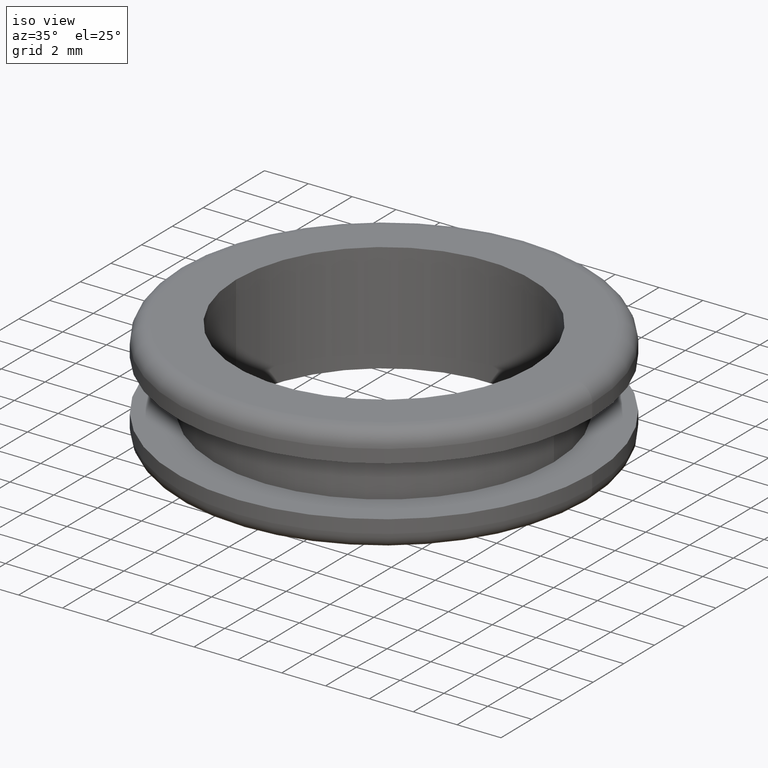
[diagram: clean part render]
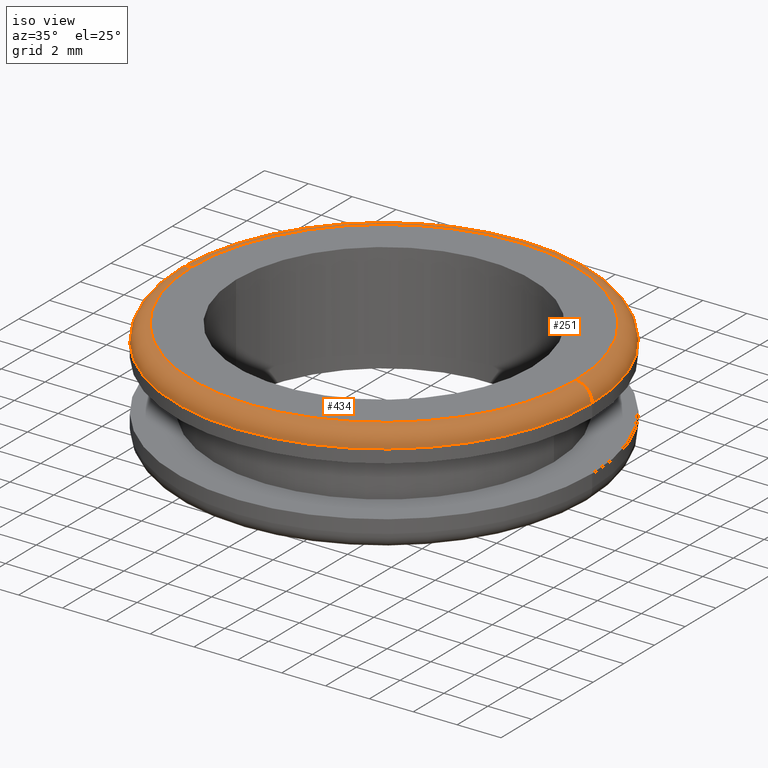
[diagram: same view with one multi-face feature highlighted, each face labeled with its STEP entity id]
A machine part, iso view. The highlighted faces form ONE feature: a constant-radius fillet chain: 2 tangent blend faces with common blend radius 0.75 mm. The faces share edges in the B-rep.
Their STEP definitions:
[1] entity #251 (Torus):
#4 = EDGE_CURVE ( 'NONE', #463, #54, #253, .T. ) ;
#52 = EDGE_CURVE ( 'NONE', #54, #210, #380, .T. ) ;
#54 = VERTEX_POINT ( 'NONE', #224 ) ;
#56 = EDGE_LOOP ( 'NONE', ( #171, #134, #62, #164 ) ) ;
#62 = ORIENTED_EDGE ( 'NONE', *, *, #379, .F. ) ;
#64 = CARTESIAN_POINT ( 'NONE',  ( 106.0608550663163900, 0.0000000000000000000, 141.9502122310738100 ) ) ;
#73 = DIRECTION ( 'NONE',  ( -0.0000000000000000000, -1.000000000000000000, -0.0000000000000000000 ) ) ;
#78 = EDGE_CURVE ( 'NONE', #463, #430, #255, .T. ) ;
#85 = DIRECTION ( 'NONE',  ( 0.0000000000000000000, 0.0000000000000000000, -1.000000000000000000 ) ) ;
#109 = CARTESIAN_POINT ( 'NONE',  ( 115.5608550661924900, 1.163414459174811700E-015, 141.9502122310738100 ) ) ;
#134 = ORIENTED_EDGE ( 'NONE', *, *, #52, .T. ) ;
#144 = CIRCLE ( 'NONE', #284, 9.499999999876093800 ) ;
#152 = AXIS2_PLACEMENT_3D ( 'NONE', #64, #365, #293 ) ;
#154 = AXIS2_PLACEMENT_3D ( 'NONE', #475, #193, #441 ) ;
#164 = ORIENTED_EDGE ( 'NONE', *, *, #78, .F. ) ;
#171 = ORIENTED_EDGE ( 'NONE', *, *, #4, .T. ) ;
#191 = CARTESIAN_POINT ( 'NONE',  ( 114.8108550661924900, 1.071565949238759400E-015, 141.9502122310738100 ) ) ;
#193 = DIRECTION ( 'NONE',  ( 0.0000000000000000000, 0.0000000000000000000, -1.000000000000000000 ) ) ;
#210 = VERTEX_POINT ( 'NONE', #109 ) ;
#224 = CARTESIAN_POINT ( 'NONE',  ( 114.8108550661924900, 1.117490204206784700E-015, 142.7002122310740000 ) ) ;
#243 = CARTESIAN_POINT ( 'NONE',  ( 97.31085506644029700, 0.0000000000000000000, 142.7002122310740000 ) ) ;
#251 = ADVANCED_FACE ( 'NONE', ( #278 ), #390, .T. ) ;
#253 = CIRCLE ( 'NONE', #154, 8.749999999876093800 ) ;
#255 = CIRCLE ( 'NONE', #355, 0.7500000000000006700 ) ;
#263 = DIRECTION ( 'NONE',  ( -1.224646799147353200E-016, 1.000000000000000000, 0.0000000000000000000 ) ) ;
#264 = DIRECTION ( 'NONE',  ( 0.0000000000000000000, 0.0000000000000000000, -1.000000000000000000 ) ) ;
#278 = FACE_OUTER_BOUND ( 'NONE', #56, .T. ) ;
#284 = AXIS2_PLACEMENT_3D ( 'NONE', #307, #85, #346 ) ;
#293 = DIRECTION ( 'NONE',  ( -1.000000000000000000, 0.0000000000000000000, 0.0000000000000000000 ) ) ;
#307 = CARTESIAN_POINT ( 'NONE',  ( 106.0608550663163900, 0.0000000000000000000, 141.9502122310738100 ) ) ;
#320 = AXIS2_PLACEMENT_3D ( 'NONE', #191, #263, #368 ) ;
#346 = DIRECTION ( 'NONE',  ( -1.000000000000000000, 0.0000000000000000000, 0.0000000000000000000 ) ) ;
#355 = AXIS2_PLACEMENT_3D ( 'NONE', #376, #73, #264 ) ;
#365 = DIRECTION ( 'NONE',  ( 0.0000000000000000000, 0.0000000000000000000, -1.000000000000000000 ) ) ;
#368 = DIRECTION ( 'NONE',  ( -1.000000000000000000, -1.224646799147352000E-016, 0.0000000000000000000 ) ) ;
#376 = CARTESIAN_POINT ( 'NONE',  ( 97.31085506644029700, 0.0000000000000000000, 141.9502122310738100 ) ) ;
#379 = EDGE_CURVE ( 'NONE', #430, #210, #144, .T. ) ;
#380 = CIRCLE ( 'NONE', #320, 0.7500000000000006700 ) ;
#387 = CARTESIAN_POINT ( 'NONE',  ( 96.56085506644029700, 0.0000000000000000000, 141.9502122310738100 ) ) ;
#390 = TOROIDAL_SURFACE ( 'NONE', #152, 8.749999999876090200, 0.7500000000000000000 ) ;
#430 = VERTEX_POINT ( 'NONE', #387 ) ;
#441 = DIRECTION ( 'NONE',  ( -1.000000000000000000, 0.0000000000000000000, 0.0000000000000000000 ) ) ;
#463 = VERTEX_POINT ( 'NONE', #243 ) ;
#475 = CARTESIAN_POINT ( 'NONE',  ( 106.0608550663163900, 0.0000000000000000000, 142.7002122310740000 ) ) ;
[2] entity #434 (Torus):
#16 = AXIS2_PLACEMENT_3D ( 'NONE', #374, #149, #477 ) ;
#22 = CIRCLE ( 'NONE', #16, 8.749999999876093800 ) ;
#52 = EDGE_CURVE ( 'NONE', #54, #210, #380, .T. ) ;
#54 = VERTEX_POINT ( 'NONE', #224 ) ;
#60 = EDGE_LOOP ( 'NONE', ( #140, #94, #399, #428 ) ) ;
#73 = DIRECTION ( 'NONE',  ( -0.0000000000000000000, -1.000000000000000000, -0.0000000000000000000 ) ) ;
#78 = EDGE_CURVE ( 'NONE', #463, #430, #255, .T. ) ;
#93 = EDGE_CURVE ( 'NONE', #54, #463, #22, .T. ) ;
#94 = ORIENTED_EDGE ( 'NONE', *, *, #93, .T. ) ;
#109 = CARTESIAN_POINT ( 'NONE',  ( 115.5608550661924900, 1.163414459174811700E-015, 141.9502122310738100 ) ) ;
#125 = CARTESIAN_POINT ( 'NONE',  ( 106.0608550663163900, 0.0000000000000000000, 141.9502122310738100 ) ) ;
#131 = TOROIDAL_SURFACE ( 'NONE', #412, 8.749999999876090200, 0.7500000000000000000 ) ;
#136 = EDGE_CURVE ( 'NONE', #210, #430, #340, .T. ) ;
#140 = ORIENTED_EDGE ( 'NONE', *, *, #52, .F. ) ;
#142 = DIRECTION ( 'NONE',  ( 0.0000000000000000000, 0.0000000000000000000, -1.000000000000000000 ) ) ;
#145 = AXIS2_PLACEMENT_3D ( 'NONE', #439, #142, #402 ) ;
#149 = DIRECTION ( 'NONE',  ( 0.0000000000000000000, 0.0000000000000000000, -1.000000000000000000 ) ) ;
#191 = CARTESIAN_POINT ( 'NONE',  ( 114.8108550661924900, 1.071565949238759400E-015, 141.9502122310738100 ) ) ;
#210 = VERTEX_POINT ( 'NONE', #109 ) ;
#224 = CARTESIAN_POINT ( 'NONE',  ( 114.8108550661924900, 1.117490204206784700E-015, 142.7002122310740000 ) ) ;
#243 = CARTESIAN_POINT ( 'NONE',  ( 97.31085506644029700, 0.0000000000000000000, 142.7002122310740000 ) ) ;
#255 = CIRCLE ( 'NONE', #355, 0.7500000000000006700 ) ;
#263 = DIRECTION ( 'NONE',  ( -1.224646799147353200E-016, 1.000000000000000000, 0.0000000000000000000 ) ) ;
#264 = DIRECTION ( 'NONE',  ( 0.0000000000000000000, 0.0000000000000000000, -1.000000000000000000 ) ) ;
#271 = DIRECTION ( 'NONE',  ( 0.0000000000000000000, 0.0000000000000000000, -1.000000000000000000 ) ) ;
#320 = AXIS2_PLACEMENT_3D ( 'NONE', #191, #263, #368 ) ;
#340 = CIRCLE ( 'NONE', #145, 9.499999999876093800 ) ;
#355 = AXIS2_PLACEMENT_3D ( 'NONE', #376, #73, #264 ) ;
#368 = DIRECTION ( 'NONE',  ( -1.000000000000000000, -1.224646799147352000E-016, 0.0000000000000000000 ) ) ;
#374 = CARTESIAN_POINT ( 'NONE',  ( 106.0608550663163900, 0.0000000000000000000, 142.7002122310740000 ) ) ;
#376 = CARTESIAN_POINT ( 'NONE',  ( 97.31085506644029700, 0.0000000000000000000, 141.9502122310738100 ) ) ;
#380 = CIRCLE ( 'NONE', #320, 0.7500000000000006700 ) ;
#387 = CARTESIAN_POINT ( 'NONE',  ( 96.56085506644029700, 0.0000000000000000000, 141.9502122310738100 ) ) ;
#399 = ORIENTED_EDGE ( 'NONE', *, *, #78, .T. ) ;
#402 = DIRECTION ( 'NONE',  ( -1.000000000000000000, 0.0000000000000000000, 0.0000000000000000000 ) ) ;
#412 = AXIS2_PLACEMENT_3D ( 'NONE', #125, #271, #425 ) ;
#417 = FACE_OUTER_BOUND ( 'NONE', #60, .T. ) ;
#425 = DIRECTION ( 'NONE',  ( -1.000000000000000000, 0.0000000000000000000, 0.0000000000000000000 ) ) ;
#428 = ORIENTED_EDGE ( 'NONE', *, *, #136, .F. ) ;
#430 = VERTEX_POINT ( 'NONE', #387 ) ;
#434 = ADVANCED_FACE ( 'NONE', ( #417 ), #131, .T. ) ;
#439 = CARTESIAN_POINT ( 'NONE',  ( 106.0608550663163900, 0.0000000000000000000, 141.9502122310738100 ) ) ;
#463 = VERTEX_POINT ( 'NONE', #243 ) ;
#477 = DIRECTION ( 'NONE',  ( -1.000000000000000000, 0.0000000000000000000, 0.0000000000000000000 ) ) ;